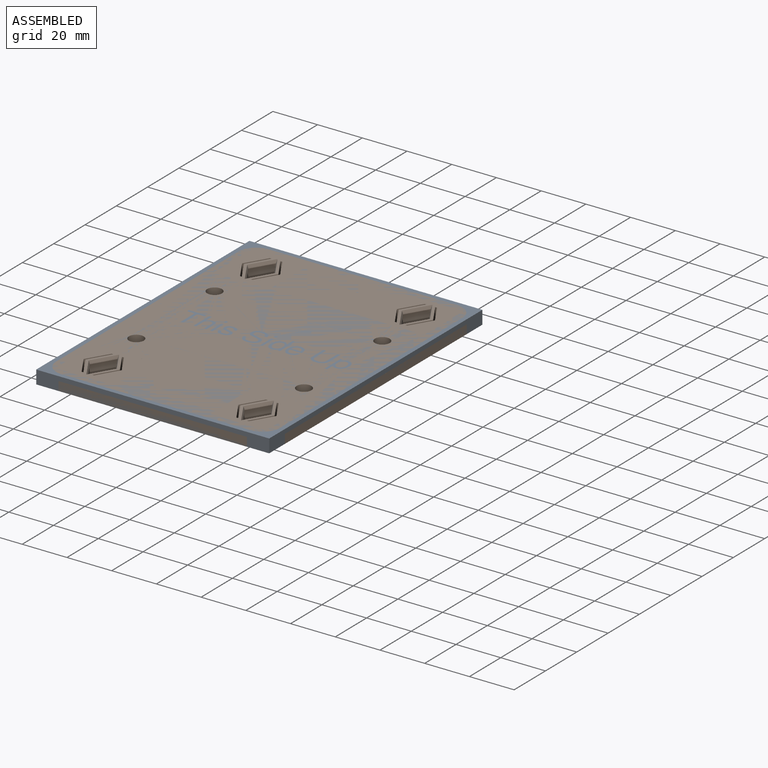
[diagram: assembled view]
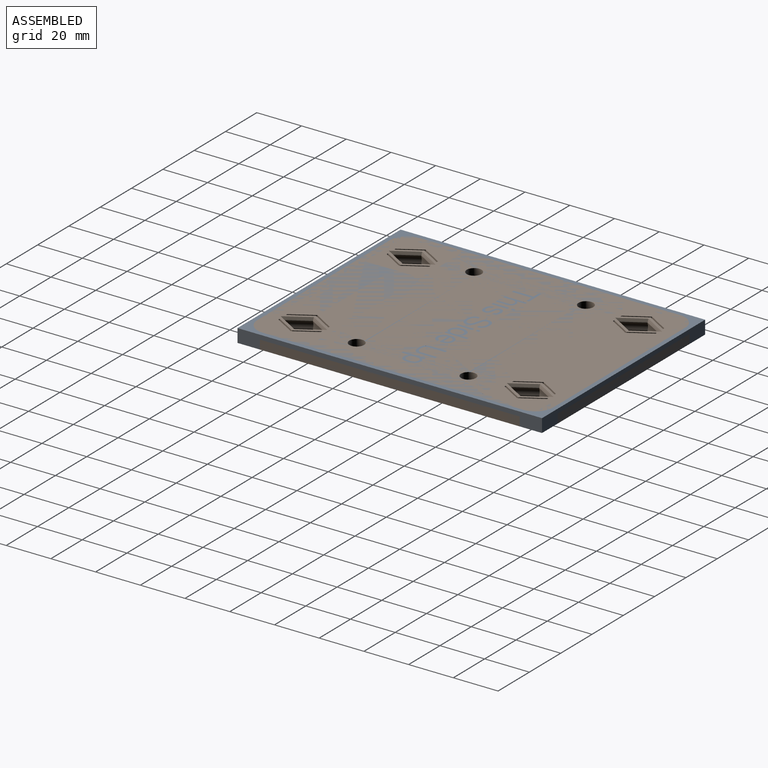
[diagram: assembled view, second angle]
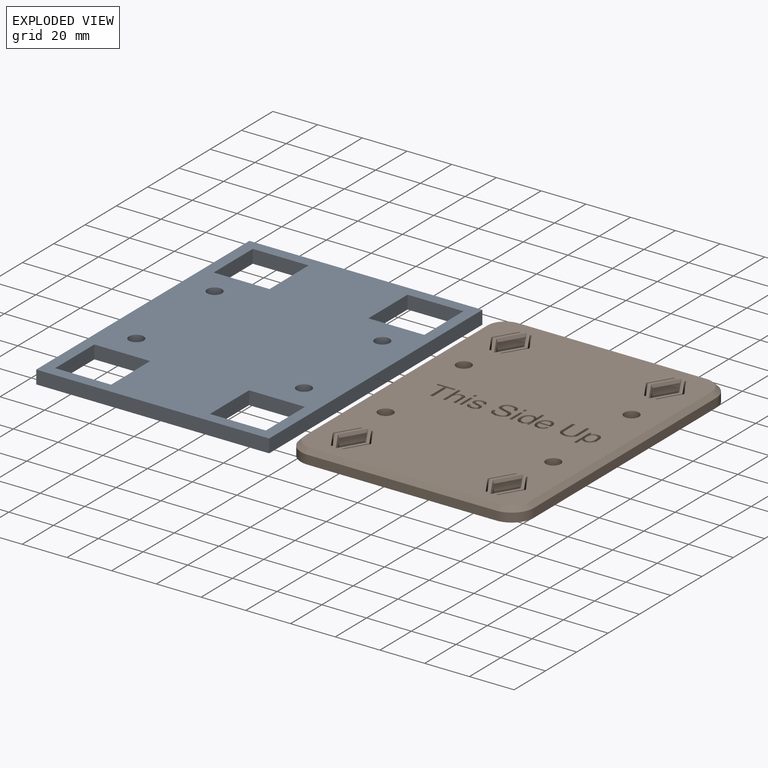
[diagram: exploded view]
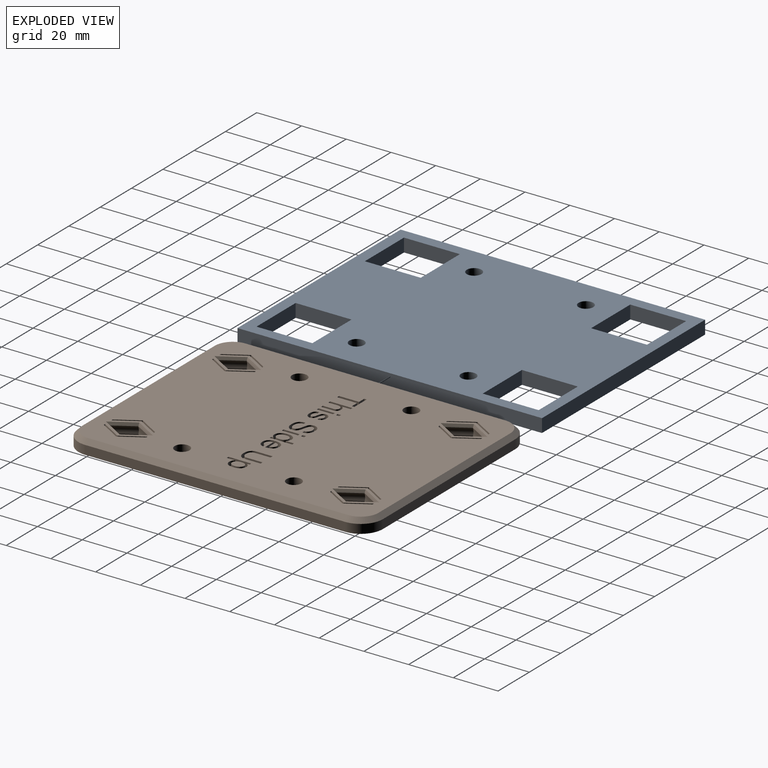
[diagram: exploded view, second angle]
FCSTD DOCUMENT  (FreeCAD 1.1R20251031 (Git shallow))
Label: DockLink-Base-plate_opticalTable_M6_grid25mm
License: All rights reserved
LicenseURL: https://en.wikipedia.org/wiki/All_rights_reserved
objects: App::Link×4, Sketcher::SketchObject×3, PartDesign::Pocket×3, App::Point×2, PartDesign::Body×2, PartDesign::Pad×1, Part::MultiFuse×1, PartDesign::FeatureBase×1, PartDesign::Fillet×1, PartDesign::Chamfer×1, Part::Part2DObjectPython×1
note: 30 computed .brp shape members not serialized (recipe doc carries the construction recipe); baked Part::Feature solids carry a one-line shape summary decoded from their .brp
EXTERNAL_REF file=../../FreeCAD_DElements/DockLink/DockLink_female.FCStd obj=Body

FEATURE [App::Point] Origin001
  Role = Origin
FEATURE [Sketcher::SketchObject] Sketch
  ArcFitTolerance = 1e-06
  AttachmentSupport = -> [Origin]
  ExternalTypes = [0]
  FullyConstrained = true
  MakeInternals = false
  MapMode = 5
  sketch-geometry (30):
    g0: LineSegment StartX=-52.105 StartY=68.1 StartZ=0 EndX=-52.105 EndY=-68.1 EndZ=0
    g1: LineSegment StartX=-52.105 StartY=-68.1 StartZ=0 EndX=52.105 EndY=-68.1 EndZ=0
    g2: LineSegment StartX=52.105 StartY=-68.1 StartZ=0 EndX=52.105 EndY=68.1 EndZ=0
    g3: LineSegment StartX=52.105 StartY=68.1 StartZ=0 EndX=-52.105 EndY=68.1 EndZ=0
    g4: GeomPoint [constr] X=0 Y=0 Z=0
    g5: LineSegment [constr] StartX=-34.605 StartY=50.6 StartZ=0 EndX=-34.605 EndY=-50.6 EndZ=0
    g6: LineSegment [constr] StartX=-34.605 StartY=-50.6 StartZ=0 EndX=34.605 EndY=-50.6 EndZ=0
    g7: LineSegment [constr] StartX=34.605 StartY=-50.6 StartZ=0 EndX=34.605 EndY=50.6 EndZ=0
    g8: LineSegment [constr] StartX=34.605 StartY=50.6 StartZ=0 EndX=-34.605 EndY=50.6 EndZ=0
    g9: GeomPoint [constr] X=0 Y=0 Z=0
    g10: LineSegment [constr] StartX=-47.105 StartY=63.1 StartZ=0 EndX=-47.105 EndY=38.1 EndZ=0
    g11: LineSegment [constr] StartX=-47.105 StartY=38.1 StartZ=0 EndX=-22.105 EndY=38.1 EndZ=0
    g12: LineSegment [constr] StartX=-22.105 StartY=38.1 StartZ=0 EndX=-22.105 EndY=63.1 EndZ=0
    g13: LineSegment [constr] StartX=-22.105 StartY=63.1 StartZ=0 EndX=-47.105 EndY=63.1 EndZ=0
    g14: GeomPoint [constr] X=-34.605 Y=50.6 Z=0
    g15: LineSegment [constr] StartX=22.105 StartY=63.1 StartZ=0 EndX=22.105 EndY=38.1 EndZ=0
    g16: LineSegment [constr] StartX=22.105 StartY=38.1 StartZ=0 EndX=47.105 EndY=38.1 EndZ=0
    g17: LineSegment [constr] StartX=47.105 StartY=38.1 StartZ=0 EndX=47.105 EndY=63.1 EndZ=0
    g18: LineSegment [constr] StartX=47.105 StartY=63.1 StartZ=0 EndX=22.105 EndY=63.1 EndZ=0
    g19: GeomPoint [constr] X=34.605 Y=50.6 Z=0
    g20: LineSegment [constr] StartX=22.105 StartY=-38.1 StartZ=0 EndX=22.105 EndY=-63.1 EndZ=0
    g21: LineSegment [constr] StartX=22.105 StartY=-63.1 StartZ=0 EndX=47.105 EndY=-63.1 EndZ=0
    g22: LineSegment [constr] StartX=47.105 StartY=-63.1 StartZ=0 EndX=47.105 EndY=-38.1 EndZ=0
    g23: LineSegment [constr] StartX=47.105 StartY=-38.1 StartZ=0 EndX=22.105 EndY=-38.1 EndZ=0
    g24: GeomPoint [constr] X=34.605 Y=-50.6 Z=0
    g25: LineSegment [constr] StartX=-22.105 StartY=-38.1 StartZ=0 EndX=-47.105 EndY=-38.1 EndZ=0
    g26: LineSegment [constr] StartX=-47.105 StartY=-38.1 StartZ=0 EndX=-47.105 EndY=-63.1 EndZ=0
    g27: LineSegment [constr] StartX=-47.105 StartY=-63.1 StartZ=0 EndX=-22.105 EndY=-63.1 EndZ=0
    g28: LineSegment [constr] StartX=-22.105 StartY=-63.1 StartZ=0 EndX=-22.105 EndY=-38.1 EndZ=0
    g29: GeomPoint [constr] X=-34.605 Y=-50.6 Z=0
  constraints (72):
    c: Coincident(g0,g1)
    c: Coincident(g1,g2)
    c: Coincident(g2,g3)
    c: Coincident(g3,g0)
    c: Vertical(g0)
    c: Vertical(g2)
    c: Horizontal(g1)
    c: Horizontal(g3)
    c: Symmetric(g2,g0,g4)
    c: Coincident(g4,g-1)
    c: Coincident(g5,g6)
    c: Coincident(g6,g7)
    c: Coincident(g7,g8)
    c: Coincident(g8,g5)
    c: Vertical(g5)
    c: Vertical(g7)
    c: Horizontal(g6)
    c: Horizontal(g8)
    c: Symmetric(g7,g5,g9)
    c: Coincident(g9,g4)
    c: DistanceX(g8,g8) = 69.21
    c: DistanceY(g7,g7) = 101.2
    c: Coincident(g10,g11)
    c: Coincident(g11,g12)
    c: Coincident(g12,g13)
    c: Coincident(g13,g10)
    c: Vertical(g10)
    c: Vertical(g12)
    c: Horizontal(g11)
    c: Horizontal(g13)
    c: Symmetric(g12,g10,g14)
    c: Coincident(g14,g5)
    c: Coincident(g15,g16)
    c: Coincident(g16,g17)
    c: Coincident(g17,g18)
    c: Coincident(g18,g15)
    c: Vertical(g15)
    c: Vertical(g17)
    c: Horizontal(g16)
    c: Horizontal(g18)
    c: Symmetric(g17,g15,g19)
    c: Coincident(g19,g7)
    c: Coincident(g20,g21)
    c: Coincident(g21,g22)
    c: Coincident(g22,g23)
    c: Coincident(g23,g20)
    c: Vertical(g20)
    c: Vertical(g22)
    c: Horizontal(g21)
    c: Horizontal(g23)
    c: Symmetric(g22,g20,g24)
    c: Coincident(g24,g6)
    c: Coincident(g25,g26)
    c: Coincident(g26,g27)
    c: Coincident(g27,g28)
    c: Coincident(g28,g25)
    c: Horizontal(g25)
    c: Horizontal(g27)
    c: Vertical(g26)
    c: Vertical(g28)
    c: Symmetric(g27,g25,g29)
    c: Coincident(g29,g5)
    c: Equal(g11,g12)
    c: Equal(g16,g12)
    c: Equal(g15,g16)
    c: Equal(g16,g23)
    c: Equal(g23,g20)
    c: Equal(g20,g28)
    c: Equal(g25,g28)
    c: Distance(g25,g25) = 25
    c: Distance(g10,g0) = 5
    c: Distance(g18,g3) = 5
FEATURE [PartDesign::Pad] Pad
  Direction = (0,0,1)
  Length = 6
  Length2 = 10
  Profile = -> Sketch
  ReferenceAxis = -> Sketch [N_Axis]
  Refine = true
  SideType = 0
  Suppressed = false
  Type = 0
  Type2 = 0
FEATURE [Sketcher::SketchObject] Sketch001  label="Sketch_DockLink_positions"
  ArcFitTolerance = 1e-06
  AttachmentSupport = -> [Pad]
  ExternalTypes = [0]
  FullyConstrained = true
  MakeInternals = false
  MapMode = 5
  Placement = pos=(0,0,6) rot=(0,0,1;0rad)
  sketch-geometry (25):
    g0: LineSegment [constr] StartX=-34.605 StartY=50.6 StartZ=0 EndX=-34.605 EndY=-50.6 EndZ=0
    g1: LineSegment [constr] StartX=-34.605 StartY=-50.6 StartZ=0 EndX=34.605 EndY=-50.6 EndZ=0
    g2: LineSegment [constr] StartX=34.605 StartY=-50.6 StartZ=0 EndX=34.605 EndY=50.6 EndZ=0
    g3: LineSegment [constr] StartX=34.605 StartY=50.6 StartZ=0 EndX=-34.605 EndY=50.6 EndZ=0
    g4: GeomPoint [constr] X=0 Y=1e-16 Z=0
    g5: LineSegment StartX=-47.105 StartY=63.1 StartZ=0 EndX=-47.105 EndY=38.1 EndZ=0
    g6: LineSegment StartX=-47.105 StartY=38.1 StartZ=0 EndX=-22.105 EndY=38.1 EndZ=0
    g7: LineSegment StartX=-22.105 StartY=38.1 StartZ=0 EndX=-22.105 EndY=63.1 EndZ=0
    g8: LineSegment StartX=-22.105 StartY=63.1 StartZ=0 EndX=-47.105 EndY=63.1 EndZ=0
    g9: GeomPoint [constr] X=-34.605 Y=50.6 Z=0
    g10: LineSegment StartX=22.105 StartY=63.1 StartZ=0 EndX=22.105 EndY=38.1 EndZ=0
    g11: LineSegment StartX=22.105 StartY=38.1 StartZ=0 EndX=47.105 EndY=38.1 EndZ=0
    g12: LineSegment StartX=47.105 StartY=38.1 StartZ=0 EndX=47.105 EndY=63.1 EndZ=0
    g13: LineSegment StartX=47.105 StartY=63.1 StartZ=0 EndX=22.105 EndY=63.1 EndZ=0
    g14: GeomPoint [constr] X=34.605 Y=50.6 Z=0
    g15: LineSegment StartX=-47.105 StartY=-38.1 StartZ=0 EndX=-47.105 EndY=-63.1 EndZ=0
    g16: LineSegment StartX=-47.105 StartY=-63.1 StartZ=0 EndX=-22.105 EndY=-63.1 EndZ=0
    g17: LineSegment StartX=-22.105 StartY=-63.1 StartZ=0 EndX=-22.105 EndY=-38.1 EndZ=0
    g18: LineSegment StartX=-22.105 StartY=-38.1 StartZ=0 EndX=-47.105 EndY=-38.1 EndZ=0
    g19: GeomPoint [constr] X=-34.605 Y=-50.6 Z=0
    g20: LineSegment StartX=22.105 StartY=-38.1 StartZ=0 EndX=22.105 EndY=-63.1 EndZ=0
    g21: LineSegment StartX=22.105 StartY=-63.1 StartZ=0 EndX=47.105 EndY=-63.1 EndZ=0
    g22: LineSegment StartX=47.105 StartY=-63.1 StartZ=0 EndX=47.105 EndY=-38.1 EndZ=0
    g23: LineSegment StartX=47.105 StartY=-38.1 StartZ=0 EndX=22.105 EndY=-38.1 EndZ=0
    g24: GeomPoint [constr] X=34.605 Y=-50.6 Z=0
  constraints (60):
    c: Coincident(g0,g1)
    c: Coincident(g1,g2)
    c: Coincident(g2,g3)
    c: Coincident(g3,g0)
    c: Vertical(g0)
    c: Vertical(g2)
    c: Horizontal(g1)
    c: Horizontal(g3)
    c: Symmetric(g2,g0,g4)
    c: Coincident(g4,g-1)
    c: DistanceY(g2,g2) = 101.2
    c: DistanceX(g3,g3) = 69.21
    c: Coincident(g5,g6)
    c: Coincident(g6,g7)
    c: Coincident(g7,g8)
    c: Coincident(g8,g5)
    c: Vertical(g5)
    c: Vertical(g7)
    c: Horizontal(g6)
    c: Horizontal(g8)
    c: Symmetric(g7,g5,g9)
    c: Coincident(g9,g0)
    c: Coincident(g10,g11)
    c: Coincident(g11,g12)
    c: Coincident(g12,g13)
    c: Coincident(g13,g10)
    c: Vertical(g10)
    c: Vertical(g12)
    c: Horizontal(g11)
    c: Horizontal(g13)
    c: Symmetric(g12,g10,g14)
    c: Coincident(g14,g2)
    c: Coincident(g15,g16)
    c: Coincident(g16,g17)
    c: Coincident(g17,g18)
    c: Coincident(g18,g15)
    c: Vertical(g15)
    c: Vertical(g17)
    c: Horizontal(g16)
    c: Horizontal(g18)
    c: Symmetric(g17,g15,g19)
    c: Coincident(g19,g0)
    c: Coincident(g20,g21)
    c: Coincident(g21,g22)
    c: Coincident(g22,g23)
    c: Coincident(g23,g20)
    c: Vertical(g20)
    c: Vertical(g22)
    c: Horizontal(g21)
    c: Horizontal(g23)
    c: Symmetric(g22,g20,g24)
    c: Coincident(g24,g1)
    c: Equal(g7,g8)
    c: Equal(g7,g10)
    c: Equal(g10,g13)
    c: Equal(g23,g11)
    c: Equal(g23,g20)
    c: Equal(g20,g17)
    c: Equal(g18,g17)
    c: Distance(g18,g18) = 25
FEATURE [PartDesign::Pocket] Pocket
  BaseFeature = -> Pad
  Direction = (0,0,-1)
  Length = 5
  Length2 = 5
  Profile = -> Sketch001
  ReferenceAxis = -> Sketch001 [N_Axis]
  Refine = true
  SideType = 0
  Suppressed = false
  Type = 1
  Type2 = 0
FEATURE [Sketcher::SketchObject] Sketch002  label="Sketch_M6_hole"
  ArcFitTolerance = 1e-06
  AttachmentSupport = -> [Pocket]
  ExternalTypes = [0]
  FullyConstrained = true
  MakeInternals = false
  MapMode = 5
  Placement = pos=(0,0,6) rot=(0,0,1;0rad)
  sketch-geometry (9):
    g0: LineSegment [constr] StartX=-37.5 StartY=25 StartZ=0 EndX=-37.5 EndY=-25 EndZ=0
    g1: LineSegment [constr] StartX=-37.5 StartY=-25 StartZ=0 EndX=37.5 EndY=-25 EndZ=0
    g2: LineSegment [constr] StartX=37.5 StartY=-25 StartZ=0 EndX=37.5 EndY=25 EndZ=0
    g3: LineSegment [constr] StartX=37.5 StartY=25 StartZ=0 EndX=-37.5 EndY=25 EndZ=0
    g4: GeomPoint [constr] X=0 Y=0 Z=0
    g5: Circle CenterX=-37.5 CenterY=25 CenterZ=0 NormalX=0 NormalY=0 NormalZ=1 AngleXU=0 Radius=3.3
    g6: Circle CenterX=37.5 CenterY=25 CenterZ=0 NormalX=0 NormalY=0 NormalZ=1 AngleXU=0 Radius=3.3
    g7: Circle CenterX=37.5 CenterY=-25 CenterZ=0 NormalX=0 NormalY=0 NormalZ=1 AngleXU=0 Radius=3.3
    g8: Circle CenterX=-37.5 CenterY=-25 CenterZ=0 NormalX=0 NormalY=0 NormalZ=1 AngleXU=0 Radius=3.3
  constraints (20):
    c: Vertical(g0)
    c: Vertical(g2)
    c: Horizontal(g1)
    c: Horizontal(g3)
    c: Symmetric(g2,g0,g4)
    c: Coincident(g4,g-1)
    c: DistanceY(g2,g2) = 50
    c: Distance(g1,g1) = 75
    c: Coincident(g5,g0)
    c: Coincident(g6,g2)
    c: Coincident(g7,g1)
    c: Coincident(g8,g0)
    c: Equal(g8,g5)
    c: Equal(g5,g6)
    c: Equal(g6,g7)
    c: Diameter(g7) = 6.6
    c: Coincident(g3,g0)
    c: Coincident(g3,g2)
    c: Coincident(g1,g0)
    c: Coincident(g2,g1)
FEATURE [PartDesign::Pocket] Pocket001
  BaseFeature = -> Pocket
  Direction = (0,0,-1)
  Length = 5
  Length2 = 5
  Profile = -> Sketch002
  ReferenceAxis = -> Sketch002 [N_Axis]
  Refine = true
  SideType = 0
  Suppressed = false
  Type = 1
  Type2 = 0
FEATURE [PartDesign::Body] Body  label="DockLink-Base-plate_opticalTable_M6_grid25mm"
  AllowCompound = true
  Group = -> [Sketch,Pad,Sketch001,Pocket,Sketch002,Pocket001]
  Origin = -> Origin
  Tip = -> Pocket001
FEATURE [App::Link] Body_DockLink_female
  LinkPlacement = pos=(34.605,-50.6,0) rot=(0,0,1;0rad)
  LinkedObject = -> <external ../../FreeCAD_DElements/DockLink/DockLink_female.FCStd>#Body
  Placement = pos=(34.605,-50.6,0) rot=(0,0,1;0rad)
FEATURE [App::Link] Body_DockLink_female001
  LinkPlacement = pos=(34.605,50.6,0) rot=(0,0,1;0rad)
  LinkedObject = -> <external ../../FreeCAD_DElements/DockLink/DockLink_female.FCStd>#Body
  Placement = pos=(34.605,50.6,0) rot=(0,0,1;0rad)
FEATURE [App::Link] Body_DockLink_female002
  LinkPlacement = pos=(-34.605,-50.6,0) rot=(0,0,1;0rad)
  LinkedObject = -> <external ../../FreeCAD_DElements/DockLink/DockLink_female.FCStd>#Body
  Placement = pos=(-34.605,-50.6,0) rot=(0,0,1;0rad)
FEATURE [App::Link] Body_DockLink_female003
  LinkPlacement = pos=(-34.605,50.6,0) rot=(0,0,1;0rad)
  LinkedObject = -> <external ../../FreeCAD_DElements/DockLink/DockLink_female.FCStd>#Body
  Placement = pos=(-34.605,50.6,0) rot=(0,0,1;0rad)
FEATURE [Part::MultiFuse] Fusion
  Refine = true
  Shapes = -> [Body,Body_DockLink_female,Body_DockLink_female002,Body_DockLink_female001,Body_DockLink_female003]
FEATURE [App::Point] Origin007  label="Origin009"
  Role = Origin
FEATURE [PartDesign::FeatureBase] BaseFeature
  BaseFeature = -> Fusion
  Suppressed = false
FEATURE [PartDesign::Fillet] Fillet
  Base = -> BaseFeature [Edge5,Edge1,Edge2,Edge8]
  BaseFeature = -> BaseFeature
  Radius = 10
  Refine = true
  SupportTransform = false
  Suppressed = false
  UseAllEdges = false
FEATURE [PartDesign::Chamfer] Chamfer
  Angle = 45
  Base = -> Fillet [Edge4]
  BaseFeature = -> Fillet
  ChamferType = 0
  FlipDirection = false
  Refine = true
  Size = 2
  Size2 = 1
  SupportTransform = false
  Suppressed = false
  UseAllEdges = false
FEATURE [Part::Part2DObjectPython] ShapeString  label="ShapeString001"  # Draft 2D object (typed FeaturePython)
  FontFile = <path>
  Fuse = false
  Justification = 6
  JustificationReference = 0
  KeepLeftMargin = false
  MakeFace = true
  ObliqueAngle = 0
  Placement = pos=(-35.7992,-3.80334,6) rot=(0,0,1;0rad)
  ScaleToSize = true
  Size = 10
  String = This Side Up
  Tracking = 0
FEATURE [PartDesign::Pocket] Pocket002
  BaseFeature = -> Chamfer
  Direction = (0,0,-1)
  Length = 2
  Length2 = 5
  Profile = -> ShapeString
  ReferenceAxis = -> ShapeString [N_Axis]
  Refine = true
  SideType = 0
  Suppressed = false
  Type = 0
  Type2 = 0
FEATURE [PartDesign::Body] Body001  label="Body"
  AllowCompound = true
  BaseFeature = -> Fusion
  Group = -> [BaseFeature,Fillet,Chamfer,ShapeString,Pocket002]
  Origin = -> Origin006
  Tip = -> Pocket002
note: 1 file-system path scrubbed to <path> (originals preserved in the JSON sidecar)
